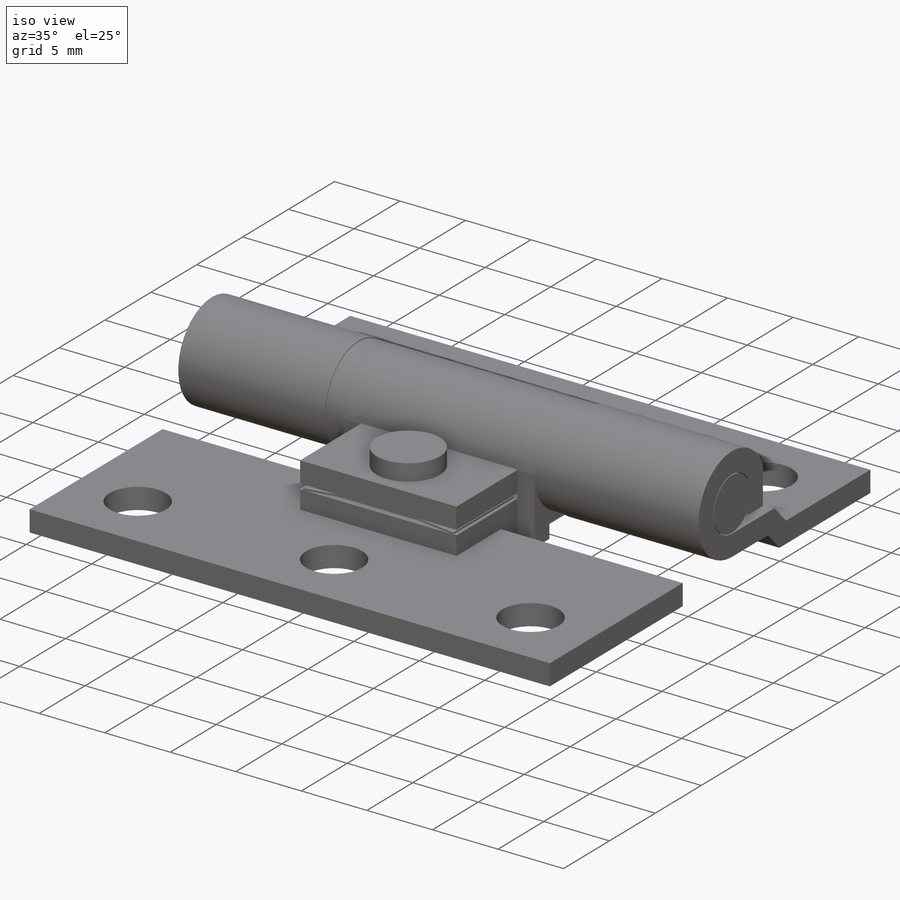
[diagram: iso view]
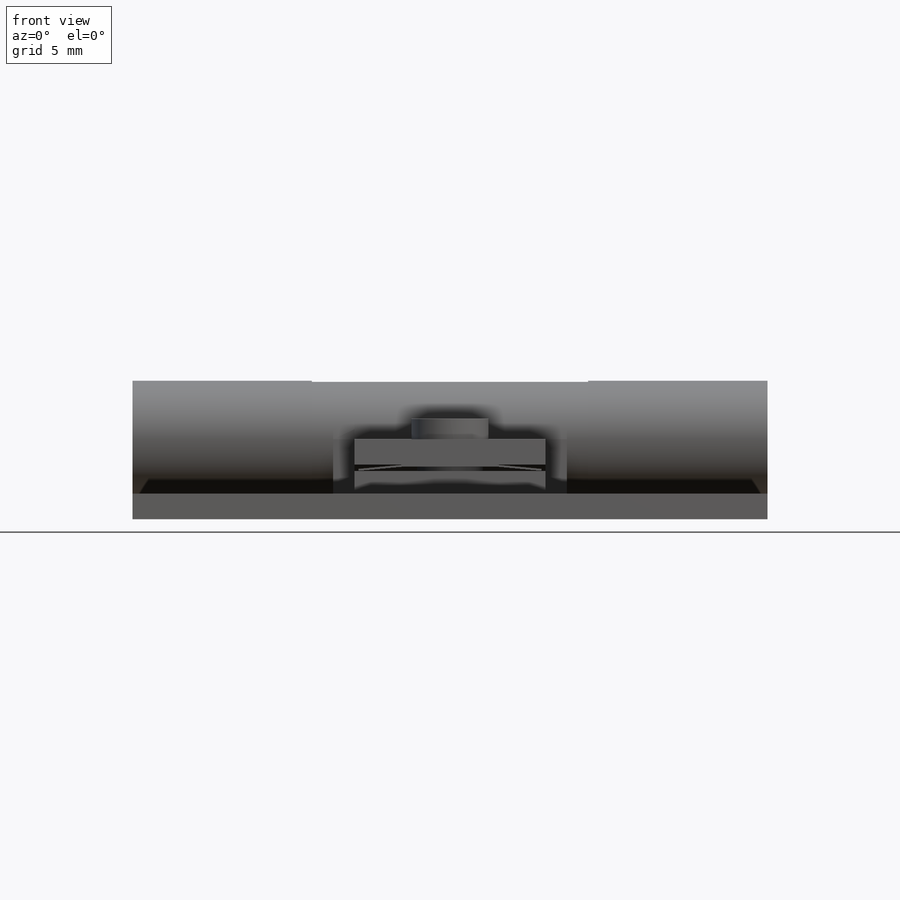
[diagram: front view]
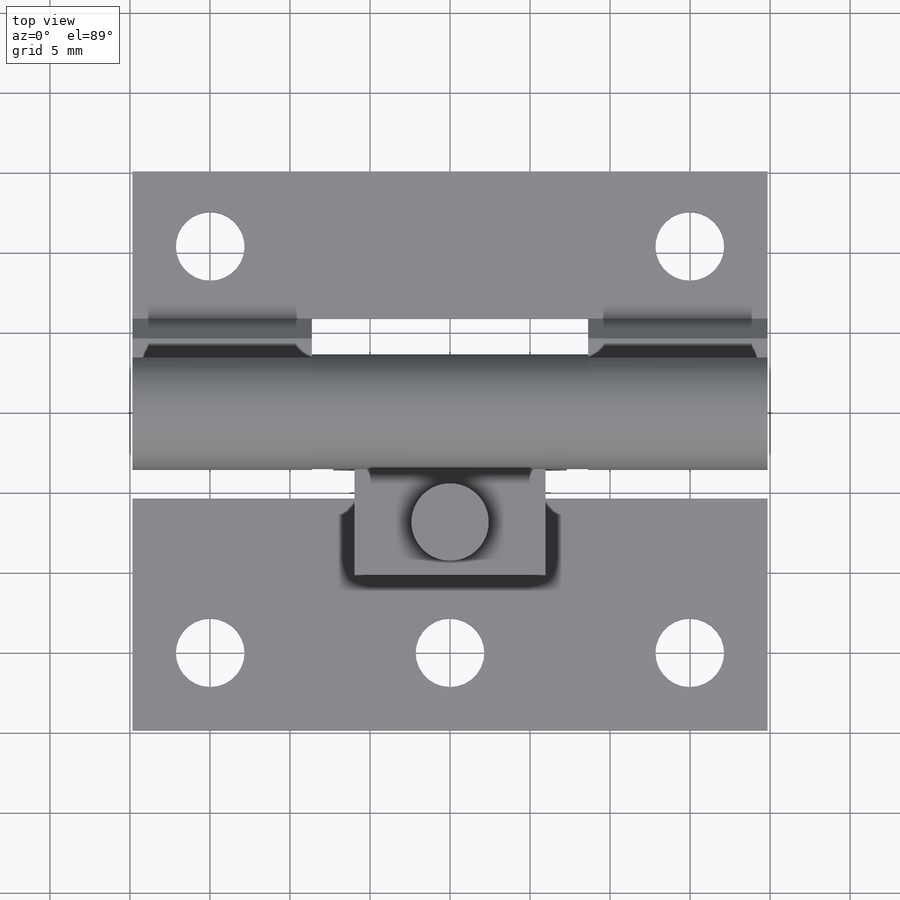
[diagram: top view]
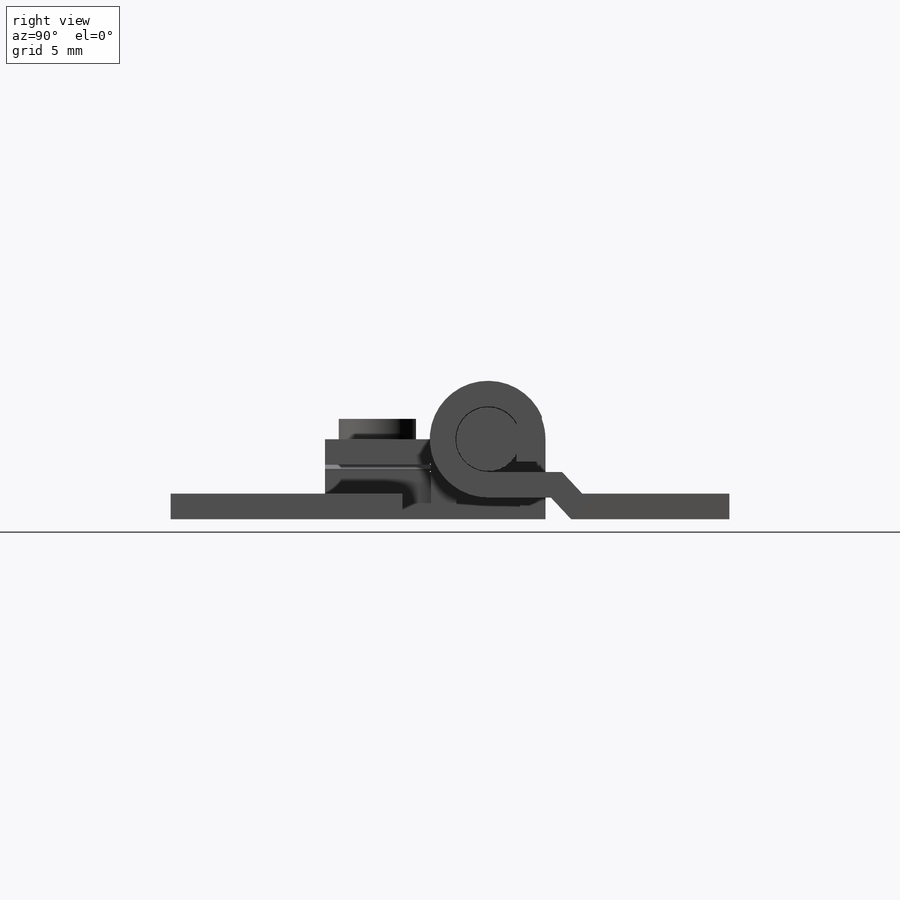
[diagram: right view]
SOLIDWORKS PART (.sldprt)
format: sldprt  version: not decoded by parser v0  size: 815,616 bytes
history: native  units: mm
features: sketch x23, extrude x9, cut_extrude x4, mirror x3, hole x3, revolve x2, material x1, plane x1 (+12 scaffold rows collapsed)
feature tree (58):
  scaffold x12  (default folders/planes/origin — collapsed)
  material  "Material <not specified>"
  sketch  "Sketch1"  dims[c1.D2=~10.31875mm c1.D3=~28.60675mm c2.D2=6.35mm c2.D3=15.875mm c2.Pin Dia=~3.96875mm c2.Kn Dia=~7.29996mm c2.Open Wd=34.925mm c3.D3=9.144mm c3.D4=10.414mm c3.D5=~34.13125mm c3.D6=2.54mm c4.D4=~5.953125mm c4.D5=10.414mm c4.D6=57.15mm c5.D6=15.0deg c5.D7=~17.253886mm c6.D7=115.0deg c6.Th=1.6002mm c6.D1=5.0mm c6.D2=0.635mm c6.D3=3.556mm c6.D4=~5.079497mm c7.D4=40.0deg c8.D4=1.6002mm c8.D5=~19.84375mm c8.D3=9.2mm c8.D6=~5.88125mm c8.D7=~5.88125mm]
  extrude  "Extrude1"  Depth=39.6875mm
  sketch  "Sketch2"  dims[D1=17.272mm D2=11.938mm]
  cut_extrude  "Cut-Extrude1"  [1 undecoded]
  sketch  "Sketch3"  dims[Left Lf=14.478mm]
  extrude  "Extrude2"  [1 undecoded]
  sketch  "Sketch16"  dims[D1=11.938mm]
  cut_extrude  "Cut-Extrude4"  [1 undecoded]
  sketch  "Sketch17"
  extrude  "Extrude7"  [1 undecoded]
  mirror  "Mirror3"
  sketch  "Sketch18"
  extrude  "Extrude8"  [1 undecoded]
  mirror  "Mirror4"
  sketch  "Sketch7"  dims[c1.H1=29.972mm c1.H2=25.4mm c1.H3=~26.664906mm c1.H4=~40.74635mm c1.D1=4.7625mm c1.D2=15.0mm c1.D3=14.986mm c2.D1=13.0mm c2.D3=3.5mm c2.D4=26.5mm]
  sketch  "Sketch25"  dims[D1=22.0mm D2=42.0mm D3=12.0mm D4=66.0mm D5=28.0mm D6=70.0mm D7=35.0mm]
  sketch  "Sketch19"  dims[c1.D2=7.9375mm c1.D1=~2.262188mm c2.D2=~2.262188mm c2.D3=~2.262188mm c3.D2=0.127mm c3.D1=~1.545273mm c4.D2=~1.545273mm c4.D3=4.826mm c4.D4=2.413mm c4.D5=0.635mm c4.D6=~0.754063mm c5.D3=4.1656mm c5.D1=4.826mm]
  extrude  "Extrude9"  [1 undecoded]
  sketch  "Sketch21"  dims[D1=~0.439103mm D2=~0.439103mm]
  extrude  "Extrude10"  [1 undecoded]
  sketch  "Sketch24"
  extrude  "Extrude12"  [1 undecoded]
  sketch  "Sketch22"  dims[c1.D1=~6.127902mm c2.D1=~19.697808deg c3.D1=0.127mm c3.D2=0.127mm c3.D3=~5.81196mm c4.D3=20.0deg c4.D2=~0.126887mm c5.D3=0.254mm]
  extrude  "Extrude11"  [1 undecoded]
  sketch  "Sketch6"
  extrude  "Extrude5"  [1 undecoded]
  hole  "#8 (0.199) Diameter Hole2"  Diameter=4.2926mm Depth=2.38125mm
  sketch  "3DSketch1"
  sketch  "Sketch8"  dims[hole-wizard template sketch: 59 standard entries collapsed; hole parameters kept: c18.Thru Hole Dia.=4.2926mm c18.Thru Hole Depth=~2.38125mm]
  hole  "#8 (0.199) Diameter Hole1"  Diameter=4.2926mm Depth=1.6002mm
  sketch  "3DSketch2"
  sketch  "Sketch10"  dims[hole-wizard template sketch: 59 standard entries collapsed; hole parameters kept: c18.Thru Hole Dia.=4.2926mm c18.Thru Hole Depth=1.6002mm]
  hole  "#8 (0.199) Diameter Hole3"  Diameter=4.2926mm Depth=1.984375mm
  sketch  "3DSketch3"
  sketch  "Sketch11"  dims[hole-wizard template sketch: 59 standard entries collapsed; hole parameters kept: c18.Thru Hole Dia.=4.2926mm c18.Thru Hole Depth=~1.984375mm]
  sketch  "Sketch12"  dims[c1.D1=~9.39989mm c1.D2=~4.699945mm c2.D1=6.35mm c2.D2=~4.090353mm c3.D1=~8.180705mm]
  cut_extrude  "Cut-Extrude2"  [1 undecoded]
  plane  "Plane2"
  sketch  "Sketch13"  dims[D1=1.27mm D2=2.413mm]
  revolve  "Revolve1"  Angle=360deg
  mirror  "Mirror2"
  sketch  "Sketch14"
  cut_extrude  "Cut-Extrude3"  [1 undecoded]
  sketch  "Sketch23"  dims[D1=2.413mm]
  revolve  "Revolve2"  Angle=360deg
decode coverage: 21 of 44 modeling features carry decoded parameters
note: ~ marks probable driven/reference dimensions
note: 12 parameter values undecoded
summary: no parameter record found for 12 features
note: suppression state not decoded; provenance and decode notes live in map.json
